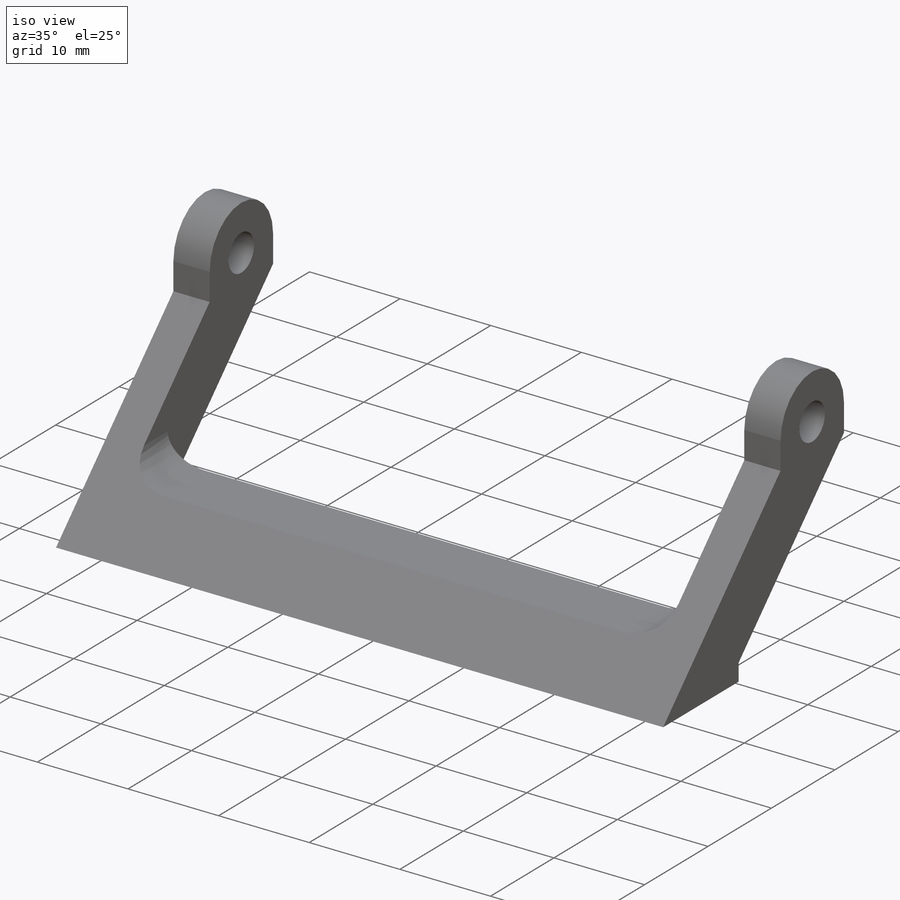
[diagram: iso view]
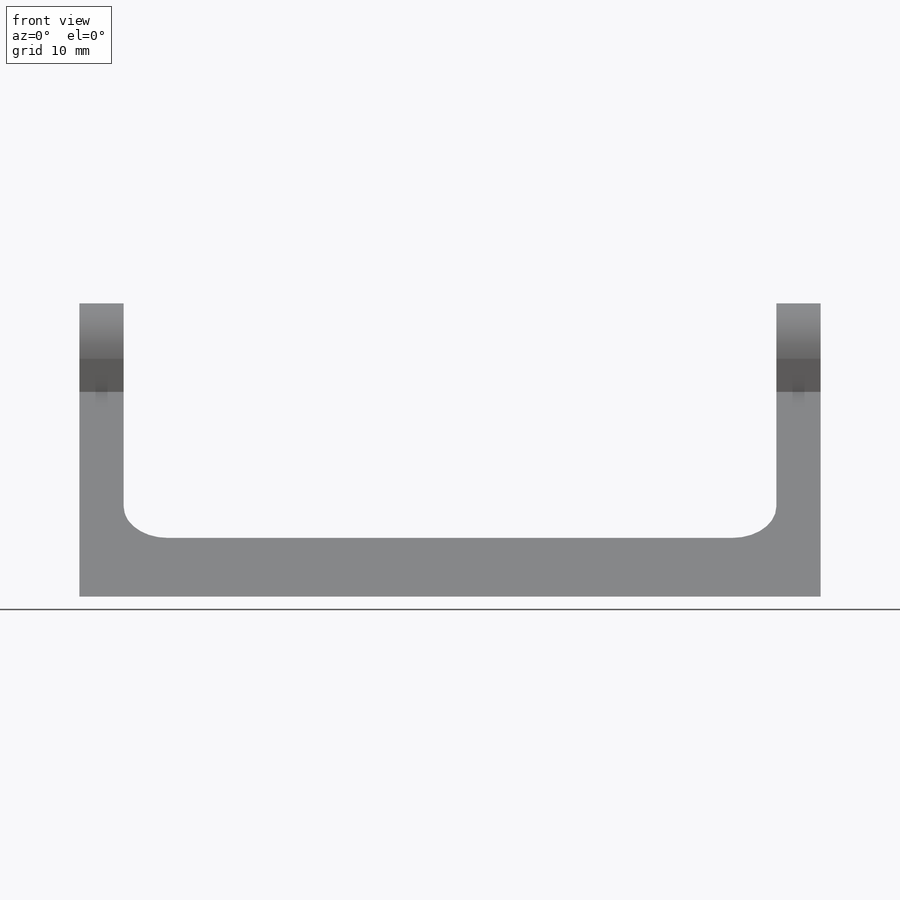
[diagram: front view]
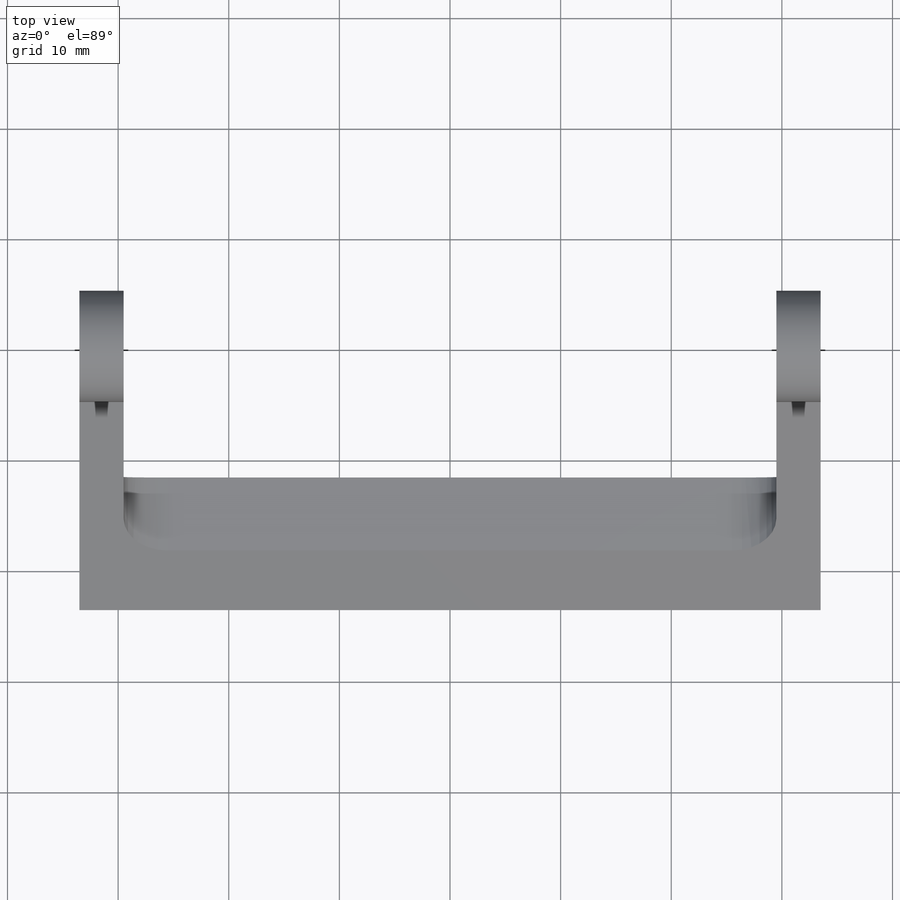
[diagram: top view]
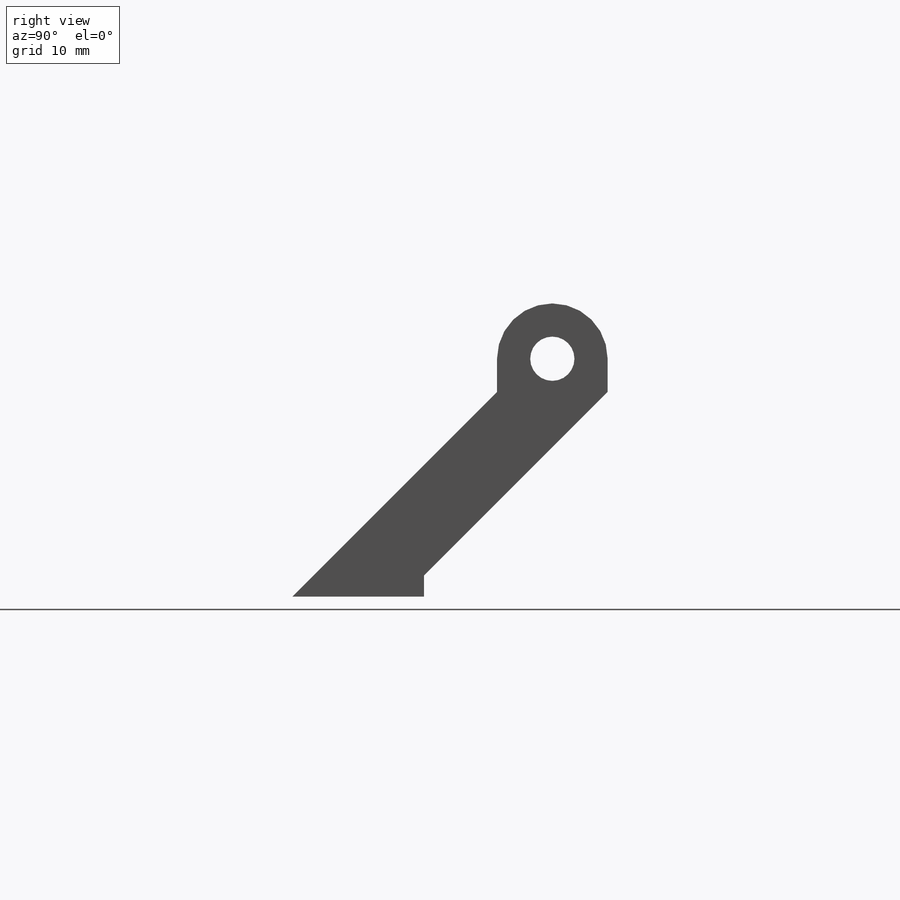
[diagram: right view]
SOLIDWORKS PART (.sldprt)
format: sldprt  version: not decoded by parser v0  size: 253,952 bytes
history: native  units: mm
features: sketch x7, cut_extrude x4, plane x3, extrude x3, material x1, fillet x1 (+9 scaffold rows collapsed)
feature tree (28):
  scaffold x9  (default folders/planes/origin — collapsed)
  material  "Material <não especificado>"
  plane  "Plano frontal"
  plane  "Plano superior"
  plane  "Plano direito"
  sketch  "Esboço1"  dims[c1.D1=4.0mm c1.D2=10.0mm c1.D3=3.0mm c1.D4=3.0mm c1.D5=3.0mm c2.D5=135.0deg c2.D6=~70.845381mm c3.D6=225.0deg c3.D7=1.9mm c3.D8=18.5mm]
  extrude  "Ressalto-extrusão1"  Depth=67mm
  sketch  "Esboço2"  dims[D4=4.0mm D1=7.5mm D2=4.0mm D3=4.0mm D5=10.0mm]
  cut_extrude  "Corte-extrusão3"  [1 undecoded]
  sketch  "Esboço4"
  cut_extrude  "Corte-extrusão4"  [1 undecoded]
  sketch  "Esboço5"  dims[D1=5.6mm]
  cut_extrude  "Corte-extrusão5"  [1 undecoded]
  extrude  "Ressalto-extrusão3"  [1 undecoded]
  sketch  "Esboço5<3>"
  sketch  "Esboço6"  dims[D1=0.0mm]
  extrude  "Ressalto-extrusão4"  Depth=0.5mm
  sketch  "Esboço7"  dims[D1=0.0mm]
  cut_extrude  "Corte-extrusão6"  [1 undecoded]
  fillet  "Filete1"  Radius=2mm
decode coverage: 8 of 15 modeling features carry decoded parameters
note: ~ marks probable driven/reference dimensions
note: 5 parameter values undecoded
summary: no parameter record found for 5 features
note: suppression state not decoded; provenance and decode notes live in map.json
